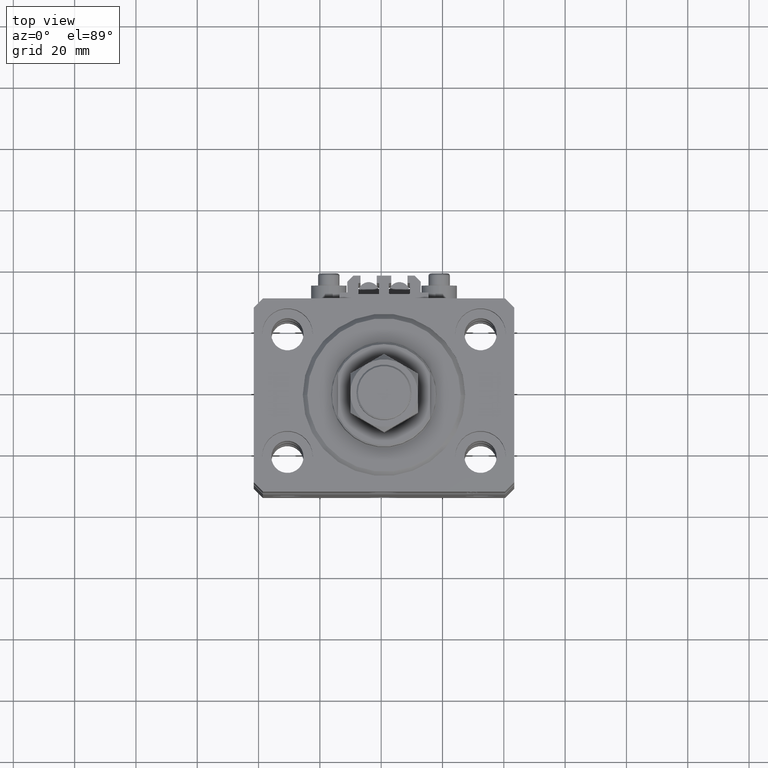
[diagram: clean part render]
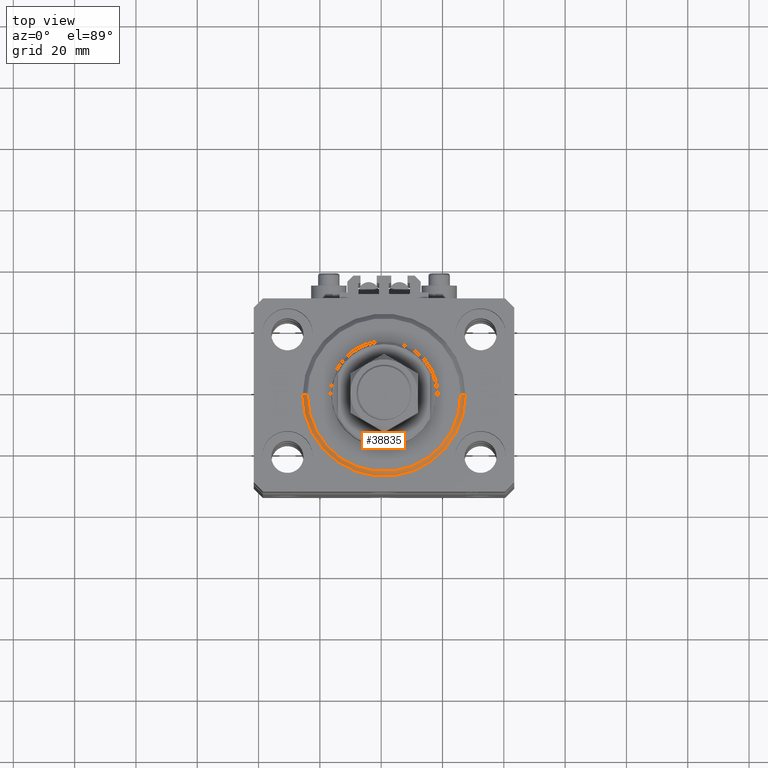
[diagram: same view with one face highlighted and labeled with its STEP entity id]
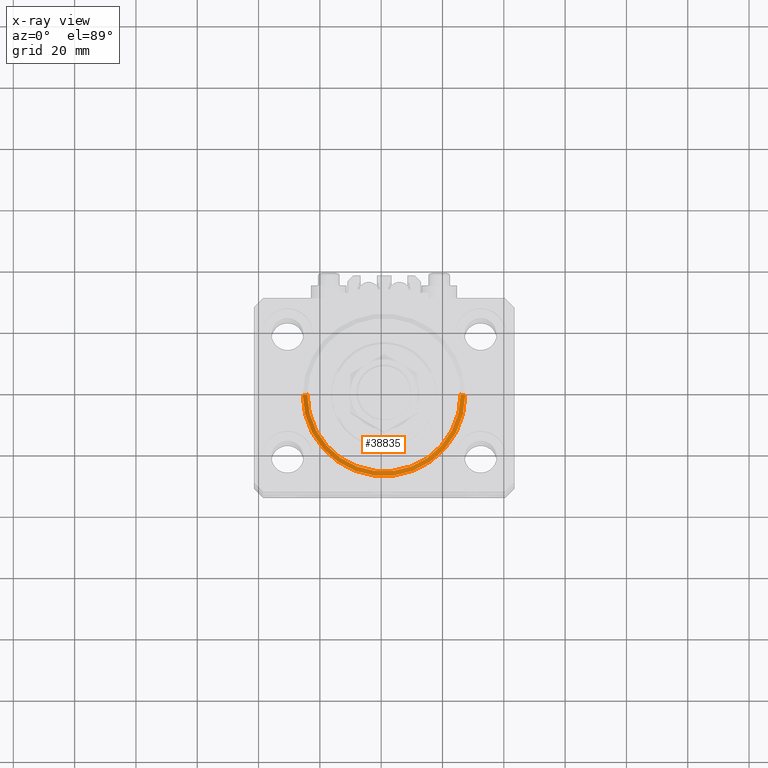
[diagram: x-ray of the same camera — body ghosted, the highlighted face saturated]
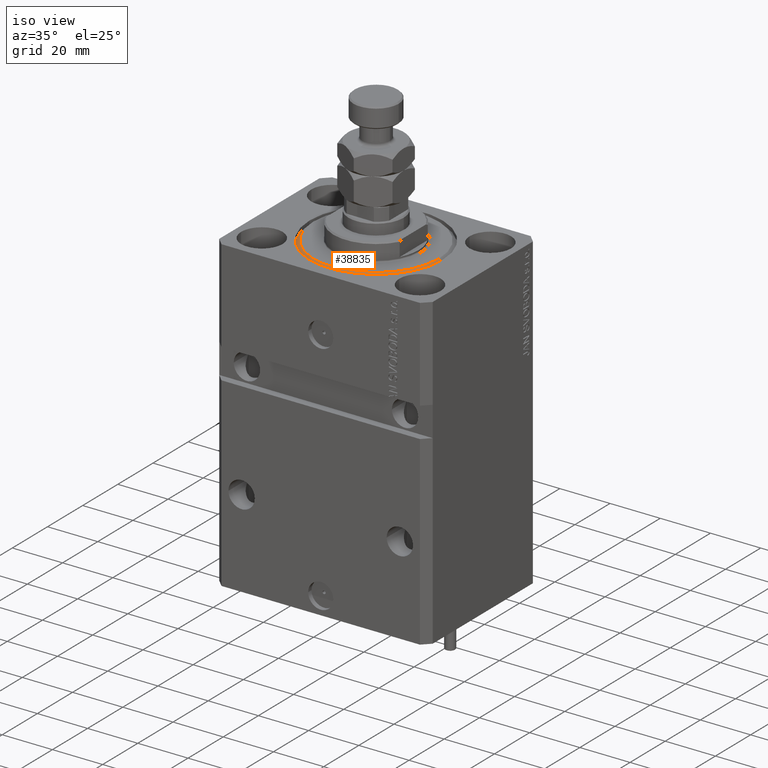
[diagram: same view with one face highlighted and labeled with its STEP entity id]
A machine part, top view. The second image highlights one B-rep face of the part: STEP entity #38835.
The next image is the same camera in x-ray: the body ghosted, the highlighted face saturated — about 0% of this face is hidden behind the body in this view.
A second angle (iso view) of the same face is appended — the face is thin or edge-on in the first view.
In plain terms, the highlighted conical surface has half-angle 45 deg.
Its self-contained STEP definition (entity closure, byte-faithful):
#23 = DIRECTION ( 'NONE',  ( 1.000000000000000000, 0.000000000000000000, 0.000000000000000000 ) ) ;
#62 = ORIENTED_EDGE ( 'NONE', *, *, #37676, .F. ) ;
#483 = DIRECTION ( 'NONE',  ( -0.7071067811865483499, 8.659560562354942719E-17, 0.7071067811865466846 ) ) ;
#2776 = FACE_OUTER_BOUND ( 'NONE', #50092, .T. ) ;
#4448 = CIRCLE ( 'NONE', #33047, 24.99999999999998224 ) ;
#6628 = DIRECTION ( 'NONE',  ( -0.000000000000000000, -0.000000000000000000, 1.000000000000000000 ) ) ;
#7134 = CARTESIAN_POINT ( 'NONE',  ( 0.000000000000000000, 0.000000000000000000, 1.500000000000018652 ) ) ;
#7393 = DIRECTION ( 'NONE',  ( 1.000000000000000000, 0.000000000000000000, 0.000000000000000000 ) ) ;
#13815 = VERTEX_POINT ( 'NONE', #29704 ) ;
#14845 = VERTEX_POINT ( 'NONE', #31535 ) ;
#15324 = EDGE_CURVE ( 'NONE', #43254, #13815, #23181, .T. ) ;
#22176 = CARTESIAN_POINT ( 'NONE',  ( 24.99999999999998224, 0.000000000000000000, 0.000000000000000000 ) ) ;
#22367 = EDGE_CURVE ( 'NONE', #40207, #14845, #47046, .T. ) ;
#23181 = LINE ( 'NONE', #35437, #29880 ) ;
#24368 = DIRECTION ( 'NONE',  ( 1.000000000000000000, 0.000000000000000000, 0.000000000000000000 ) ) ;
#24748 = CONICAL_SURFACE ( 'NONE', #42848, 26.50000000000000355, 0.7853981633974495002 ) ;
#25317 = ORIENTED_EDGE ( 'NONE', *, *, #15324, .T. ) ;
#25522 = AXIS2_PLACEMENT_3D ( 'NONE', #34799, #34038, #23 ) ;
#27276 = DIRECTION ( 'NONE',  ( 0.7071067811865483499, 0.000000000000000000, 0.7071067811865466846 ) ) ;
#29704 = CARTESIAN_POINT ( 'NONE',  ( 26.50000000000000355, 3.245314017740486554E-15, 1.500000000000018652 ) ) ;
#29880 = VECTOR ( 'NONE', #27276, 1000.000000000000000 ) ;
#29996 = VECTOR ( 'NONE', #483, 1000.000000000000000 ) ;
#31201 = CARTESIAN_POINT ( 'NONE',  ( -26.50000000000000355, 3.245314017740486554E-15, 1.500000000000018652 ) ) ;
#31535 = CARTESIAN_POINT ( 'NONE',  ( -26.50000000000000355, 0.000000000000000000, 1.500000000000018652 ) ) ;
#33047 = AXIS2_PLACEMENT_3D ( 'NONE', #47893, #44323, #24368 ) ;
#33593 = CARTESIAN_POINT ( 'NONE',  ( -24.99999999999998224, 3.153465507804433615E-15, 0.000000000000000000 ) ) ;
#34038 = DIRECTION ( 'NONE',  ( -0.000000000000000000, -0.000000000000000000, 1.000000000000000000 ) ) ;
#34330 = ORIENTED_EDGE ( 'NONE', *, *, #43546, .F. ) ;
#34611 = ORIENTED_EDGE ( 'NONE', *, *, #22367, .F. ) ;
#34799 = CARTESIAN_POINT ( 'NONE',  ( 0.000000000000000000, 0.000000000000000000, 1.500000000000018652 ) ) ;
#35437 = CARTESIAN_POINT ( 'NONE',  ( 26.50000000000000355, 0.000000000000000000, 1.500000000000018652 ) ) ;
#37676 = EDGE_CURVE ( 'NONE', #14845, #13815, #47584, .T. ) ;
#38835 = ADVANCED_FACE ( 'NONE', ( #2776 ), #24748, .T. ) ;
#40207 = VERTEX_POINT ( 'NONE', #33593 ) ;
#42848 = AXIS2_PLACEMENT_3D ( 'NONE', #7134, #6628, #7393 ) ;
#43254 = VERTEX_POINT ( 'NONE', #22176 ) ;
#43546 = EDGE_CURVE ( 'NONE', #43254, #40207, #4448, .T. ) ;
#44323 = DIRECTION ( 'NONE',  ( -0.000000000000000000, -0.000000000000000000, -1.000000000000000000 ) ) ;
#47046 = LINE ( 'NONE', #31201, #29996 ) ;
#47584 = CIRCLE ( 'NONE', #25522, 26.50000000000000355 ) ;
#47893 = CARTESIAN_POINT ( 'NONE',  ( 0.000000000000000000, 0.000000000000000000, 0.000000000000000000 ) ) ;
#50092 = EDGE_LOOP ( 'NONE', ( #34611, #34330, #25317, #62 ) ) ;